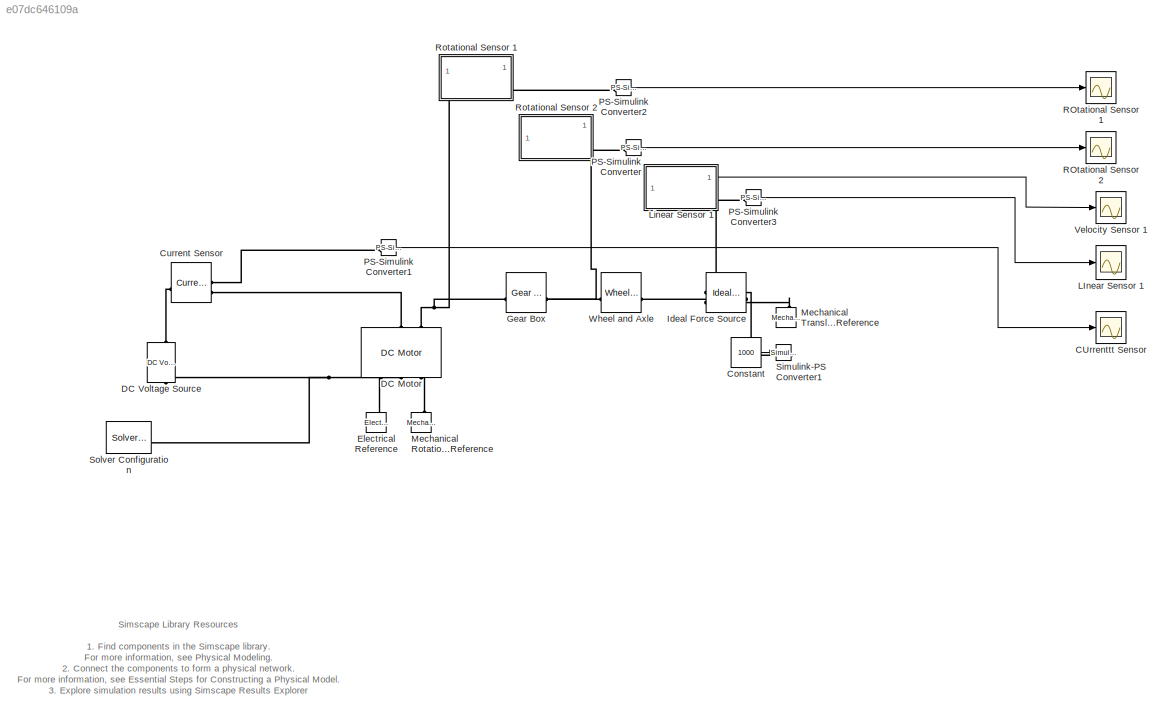
MODEL slx_e07dc646109a
KIND model
CONFIG AbsTol = 1e-3
CONFIG EnableMultiTasking = off
CONFIG FixedStep = auto
CONFIG MaxStep = auto
CONFIG MinStep = auto
CONFIG RelTol = 1e-3
CONFIG SampleTimeConstraint = Unconstrained
CONFIG SolverName = VariableStepAuto
CONFIG StartTime = 0.0
CONFIG StopTime = 100.0
BLOCK [Scope] CUrrenttt Sensor
  Floating = off
  NumInputPorts = 1
  ScopeSpecificationString = Simulink.scopes.TimeScopeBlockCfg('CurrentConfiguration', extmgr.ConfigurationSet(extmgr.Configuration('Core','General UI',true),extmgr.Configuration('Core','Source UI',true),extmgr.Configuration('Sources','WiredSimulink',true,'DataLoggingVariableName','ScopeData2'),extmgr.Configuration('Visuals','Time Domain',true,'SerializedDisplays',{struct('MinYLimReal','-785.39816','MaxYLimReal','87.26646','Y...<+1422ch>
BLOCK [Constant] Constant
  Value = 1000
BLOCK [Reference] Current Sensor  REF=fl_lib/Electrical/Electrical Sensors/Current Sensor
  LibrarySourceBlock = ee_lib/Sensors &\nTransducers/Current Sensor
  SourceBlock = fl_lib/Electrical/Electrical Sensors/Current Sensor
  SourceType = Current Sensor
BLOCK [Reference] DC Motor  REF=ee_lib/Electromechanical/Brushed Motors/DC Motor
  NameLocation = right
  SourceBlock = ee_lib/Electromechanical/Brushed Motors/DC Motor
  SourceType = DC Motor
BLOCK [Reference] DC Voltage Source  REF=fl_lib/Electrical/Electrical Sources/DC Voltage Source
  NameLocation = right
  SourceBlock = fl_lib/Electrical/Electrical Sources/DC Voltage Source
  SourceType = DC Voltage Source
BLOCK [Reference] Electrical Reference  REF=fl_lib/Electrical/Electrical Elements/Electrical Reference
  LibrarySourceBlock = ee_lib/Connectors &\nReferences/Electrical Reference
  NameLocation = right
  SourceBlock = fl_lib/Electrical/Electrical Elements/Electrical Reference
  SourceType = Electrical Reference
BLOCK [Reference] Gear Box  REF=fl_lib/Mechanical/Mechanisms/Gear Box
  SourceBlock = fl_lib/Mechanical/Mechanisms/Gear Box
  SourceType = Gear Box
BLOCK [Reference] Ideal Force Source  REF=fl_lib/Mechanical/Mechanical Sources/Ideal Force Source
  NameLocation = top
  SourceBlock = fl_lib/Mechanical/Mechanical Sources/Ideal Force Source
  SourceType = Ideal Force Source
BLOCK [Scope] LInear Sensor 1
  Floating = off
  NumInputPorts = 1
  ScopeSpecificationString = Simulink.scopes.TimeScopeBlockCfg('CurrentConfiguration', extmgr.ConfigurationSet(extmgr.Configuration('Core','General UI',true),extmgr.Configuration('Core','Source UI',true),extmgr.Configuration('Sources','WiredSimulink',true,'DataLoggingVariableName','ScopeData1'),extmgr.Configuration('Visuals','Time Domain',true,'SerializedDisplays',{struct('MinYLimReal','-29430.8722','MaxYLimReal','264877.8498...<+1464ch>
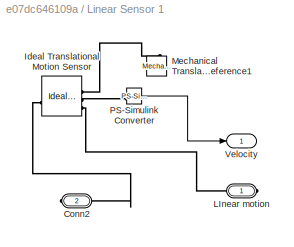
BLOCK [SubSystem] Linear Sensor 1
  PortSchema = {"entries":[{"content":{"sides":[{"content":{"connectorIds":[]},"type":"ConnectorPlacement.EquallySpacedRectSide","uuid":"42956747-6119-46f9-b0df-6679d54f7695"},{"content":{"connectorIds":["Out1","RConn1"],"side":"RIGHT"},"type":"ConnectorPlacement.EquallySpacedRectSide","uuid":"e1d62f43-fea6-493a-9d7e-bbaea8ec81f5"},{"content":{"connectorIds":[],"side":"TOP"},"type":"ConnectorPlacement.EquallySpa...<+396ch>
BLOCK [PMIOPort] Linear Sensor 1/Conn2
  Port = 2
  Side = Right
BLOCK [Reference] Linear Sensor 1/Ideal Translational Motion Sensor  REF=fl_lib/Mechanical/Mechanical Sensors/Ideal Translational
Motion Sensor
  SourceBlock = fl_lib/Mechanical/Mechanical Sensors/Ideal Translational\nMotion Sensor
  SourceType = Ideal Translational\nMotion Sensor
BLOCK [PMIOPort] Linear Sensor 1/LInear motion
  Side = Right
BLOCK [Reference] Linear Sensor 1/Mechanical Translational Reference1  REF=fl_lib/Mechanical/Translational
Elements/Mechanical
Translational
Reference
  NameLocation = right
  SourceBlock = fl_lib/Mechanical/Translational\nElements/Mechanical\nTranslational\nReference
  SourceType = Mechanical\nTranslational\nReference
BLOCK [Reference] Linear Sensor 1/PS-Simulink Converter  REF=nesl_utility/PS-Simulink
Converter
  SourceBlock = nesl_utility/PS-Simulink\nConverter
  SourceType = PS-Simulink\nConverter
BLOCK [Outport] Linear Sensor 1/Velocity
BLOCK [Reference] Mechanical Rotational Reference  REF=fl_lib/Mechanical/Rotational Elements/Mechanical
Rotational Reference
  NameLocation = right
  SourceBlock = fl_lib/Mechanical/Rotational Elements/Mechanical\nRotational Reference
  SourceType = Mechanical\nRotational Reference
BLOCK [Reference] Mechanical Translational Reference  REF=fl_lib/Mechanical/Translational
Elements/Mechanical
Translational
Reference
  NameLocation = right
  SourceBlock = fl_lib/Mechanical/Translational\nElements/Mechanical\nTranslational\nReference
  SourceType = Mechanical\nTranslational\nReference
BLOCK [Reference] PS-Simulink Converter  REF=nesl_utility/PS-Simulink
Converter
  SourceBlock = nesl_utility/PS-Simulink\nConverter
  SourceType = PS-Simulink\nConverter
BLOCK [Reference] PS-Simulink Converter1  REF=nesl_utility/PS-Simulink
Converter
  SourceBlock = nesl_utility/PS-Simulink\nConverter
  SourceType = PS-Simulink\nConverter
BLOCK [Reference] PS-Simulink Converter2  REF=nesl_utility/PS-Simulink
Converter
  SourceBlock = nesl_utility/PS-Simulink\nConverter
  SourceType = PS-Simulink\nConverter
BLOCK [Reference] PS-Simulink Converter3  REF=nesl_utility/PS-Simulink
Converter
  SourceBlock = nesl_utility/PS-Simulink\nConverter
  SourceType = PS-Simulink\nConverter
BLOCK [Scope] ROtational Sensor 1
  Floating = off
  NumInputPorts = 1
  ScopeSpecificationString = Simulink.scopes.TimeScopeBlockCfg('CurrentConfiguration', extmgr.ConfigurationSet(extmgr.Configuration('Core','General UI',true),extmgr.Configuration('Core','Source UI',true),extmgr.Configuration('Sources','WiredSimulink',true,'DataLoggingVariableName','ScopeData1'),extmgr.Configuration('Visuals','Time Domain',true,'SerializedDisplays',{struct('MinYLimReal','-613598.16271','MaxYLimReal','5522383.4...<+1474ch>
BLOCK [Scope] ROtational Sensor 2
  Floating = off
  NumInputPorts = 1
  ScopeSpecificationString = Simulink.scopes.TimeScopeBlockCfg('CurrentConfiguration', extmgr.ConfigurationSet(extmgr.Configuration('Core','General UI',true),extmgr.Configuration('Core','Source UI',true),extmgr.Configuration('Sources','WiredSimulink',true,'DataLoggingVariableName','ScopeData2'),extmgr.Configuration('Visuals','Time Domain',true,'SerializedDisplays',{struct('MinYLimReal','-98175.70603','MaxYLimReal','883581.354...<+1461ch>
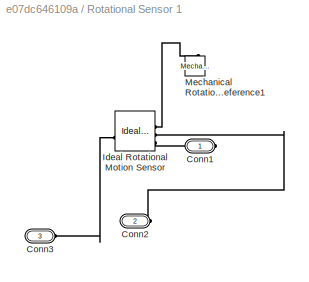
BLOCK [SubSystem] Rotational Sensor 1
BLOCK [PMIOPort] Rotational Sensor 1/Conn1
  Side = Right
BLOCK [PMIOPort] Rotational Sensor 1/Conn2
  Port = 2
  Side = Right
BLOCK [PMIOPort] Rotational Sensor 1/Conn3
  Port = 3
  Side = Left
BLOCK [Reference] Rotational Sensor 1/Ideal Rotational Motion Sensor  REF=fl_lib/Mechanical/Mechanical Sensors/Ideal Rotational
Motion Sensor
  SourceBlock = fl_lib/Mechanical/Mechanical Sensors/Ideal Rotational\nMotion Sensor
  SourceType = Ideal Rotational\nMotion Sensor
BLOCK [Reference] Rotational Sensor 1/Mechanical Rotational Reference1  REF=fl_lib/Mechanical/Rotational Elements/Mechanical
Rotational Reference
  NameLocation = right
  SourceBlock = fl_lib/Mechanical/Rotational Elements/Mechanical\nRotational Reference
  SourceType = Mechanical\nRotational Reference
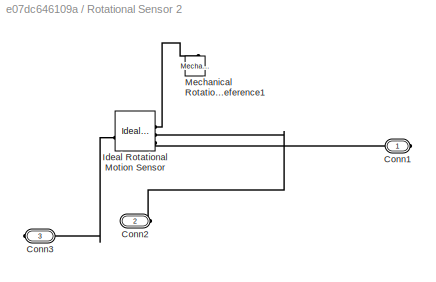
BLOCK [SubSystem] Rotational Sensor 2
  PortSchema = {"entries":[{"content":{"sides":[{"content":{"connectorIds":[]},"type":"ConnectorPlacement.EquallySpacedRectSide","uuid":"e897a382-e88f-44d9-acc3-dd8f7f97237e"},{"content":{"connectorIds":["RConn1","RConn2"],"side":"RIGHT"},"type":"ConnectorPlacement.EquallySpacedRectSide","uuid":"aa439bbc-03b3-4864-bc7e-687063afc4e7"},{"content":{"connectorIds":[],"side":"TOP"},"type":"ConnectorPlacement.EquallyS...<+398ch>
BLOCK [PMIOPort] Rotational Sensor 2/Conn1
  Side = Right
BLOCK [PMIOPort] Rotational Sensor 2/Conn2
  Port = 2
  Side = Right
BLOCK [PMIOPort] Rotational Sensor 2/Conn3
  Port = 3
  Side = Right
BLOCK [Reference] Rotational Sensor 2/Ideal Rotational Motion Sensor  REF=fl_lib/Mechanical/Mechanical Sensors/Ideal Rotational
Motion Sensor
  SourceBlock = fl_lib/Mechanical/Mechanical Sensors/Ideal Rotational\nMotion Sensor
  SourceType = Ideal Rotational\nMotion Sensor
BLOCK [Reference] Rotational Sensor 2/Mechanical Rotational Reference1  REF=fl_lib/Mechanical/Rotational Elements/Mechanical
Rotational Reference
  NameLocation = right
  SourceBlock = fl_lib/Mechanical/Rotational Elements/Mechanical\nRotational Reference
  SourceType = Mechanical\nRotational Reference
BLOCK [Reference] Simulink-PS Converter1  REF=nesl_utility/Simulink-PS
Converter
  SourceBlock = nesl_utility/Simulink-PS\nConverter
  SourceType = Simulink-PS\nConverter
BLOCK [Reference] Solver Configuration  REF=nesl_utility/Solver
Configuration
  SourceBlock = nesl_utility/Solver\nConfiguration
  SourceType = Solver\nConfiguration
BLOCK [Scope] Velocity Sensor 1
  Floating = off
  NumInputPorts = 1
  ScopeSpecificationString = Simulink.scopes.TimeScopeBlockCfg('CurrentConfiguration', extmgr.ConfigurationSet(extmgr.Configuration('Core','General UI',true),extmgr.Configuration('Core','Source UI',true),extmgr.Configuration('Sources','WiredSimulink',true),extmgr.Configuration('Visuals','Time Domain',true,'SerializedDisplays',{struct('MinYLimReal','-294.52712','MaxYLimReal','2650.74406','YLabelReal','','MinYLimMag',' 0.00000'...<+1404ch>
BLOCK [Reference] Wheel and Axle  REF=fl_lib/Mechanical/Mechanisms/Wheel and Axle
  SourceBlock = fl_lib/Mechanical/Mechanisms/Wheel and Axle
  SourceType = Wheel and Axle
ANNOTATION (root): 1. Find components in the Simscape library . For more information, see Physical Modeling . 2. Connect the components to form a physical network. For more information, see Essential Steps for Constructing a Physical Model . 3. Explore simulation results using Simscape Results Explorer
ANNOTATION (root): Simscape Library Resources
LINE Constant:1 -> Simulink-PS Converter1:1
LINE Linear Sensor 1/PS-Simulink Converter:1 -> Linear Sensor 1/Velocity:1
LINE Linear Sensor 1:1 -> Velocity Sensor 1:1
LINE PS-Simulink Converter1:1 -> CUrrenttt Sensor:1
LINE PS-Simulink Converter2:1 -> ROtational Sensor 1:1
LINE PS-Simulink Converter3:1 -> LInear Sensor 1:1
LINE PS-Simulink Converter:1 -> ROtational Sensor 2:1
PLINE Current Sensor:LConn1 -- DC Voltage Source:LConn1
PLINE Current Sensor:RConn1 -- PS-Simulink Converter1:LConn1
PLINE Current Sensor:RConn2 -- DC Motor:LConn1
PNET net1: DC Motor:LConn2 -- Gear Box:LConn1 -- Rotational Sensor 1:LConn1
PNET net2: DC Motor:RConn1 -- DC Voltage Source:RConn1 -- Electrical Reference:LConn1 -- Solver Configuration:RConn1
PLINE DC Motor:RConn2 -- Mechanical Rotational Reference:LConn1
PNET net3: Gear Box:RConn1 -- Rotational Sensor 2:RConn3 -- Wheel and Axle:LConn1
PNET net4: Ideal Force Source:LConn1 -- Linear Sensor 1:RConn2 -- Wheel and Axle:RConn1
PLINE Ideal Force Source:RConn1 -- Simulink-PS Converter1:RConn1
PLINE Ideal Force Source:RConn2 -- Mechanical Translational Reference:LConn1
PLINE Linear Sensor 1/Conn2:RConn1 -- Linear Sensor 1/Ideal Translational Motion Sensor:LConn1
PLINE Linear Sensor 1/Ideal Translational Motion Sensor:RConn1 -- Linear Sensor 1/Mechanical Translational Reference1:LConn1
PLINE Linear Sensor 1/Ideal Translational Motion Sensor:RConn2 -- Linear Sensor 1/PS-Simulink Converter:LConn1
PLINE Linear Sensor 1/Ideal Translational Motion Sensor:RConn3 -- Linear Sensor 1/LInear motion:RConn1
PLINE Linear Sensor 1:RConn1 -- PS-Simulink Converter3:LConn1
PLINE PS-Simulink Converter2:LConn1 -- Rotational Sensor 1:RConn2
PLINE PS-Simulink Converter:LConn1 -- Rotational Sensor 2:RConn2
PLINE Rotational Sensor 1/Conn1:RConn1 -- Rotational Sensor 1/Ideal Rotational Motion Sensor:RConn3
PLINE Rotational Sensor 1/Conn2:RConn1 -- Rotational Sensor 1/Ideal Rotational Motion Sensor:RConn2
PLINE Rotational Sensor 1/Conn3:RConn1 -- Rotational Sensor 1/Ideal Rotational Motion Sensor:LConn1
PLINE Rotational Sensor 1/Ideal Rotational Motion Sensor:RConn1 -- Rotational Sensor 1/Mechanical Rotational Reference1:LConn1
PLINE Rotational Sensor 2/Conn1:RConn1 -- Rotational Sensor 2/Ideal Rotational Motion Sensor:RConn3
PLINE Rotational Sensor 2/Conn2:RConn1 -- Rotational Sensor 2/Ideal Rotational Motion Sensor:RConn2
PLINE Rotational Sensor 2/Conn3:RConn1 -- Rotational Sensor 2/Ideal Rotational Motion Sensor:LConn1
PLINE Rotational Sensor 2/Ideal Rotational Motion Sensor:RConn1 -- Rotational Sensor 2/Mechanical Rotational Reference1:LConn1
note: PNET lines group multi-terminal physical nets as a canonical sorted terminal list (undirected conserving connections); 2-terminal nets keep the pairwise PLINE form
